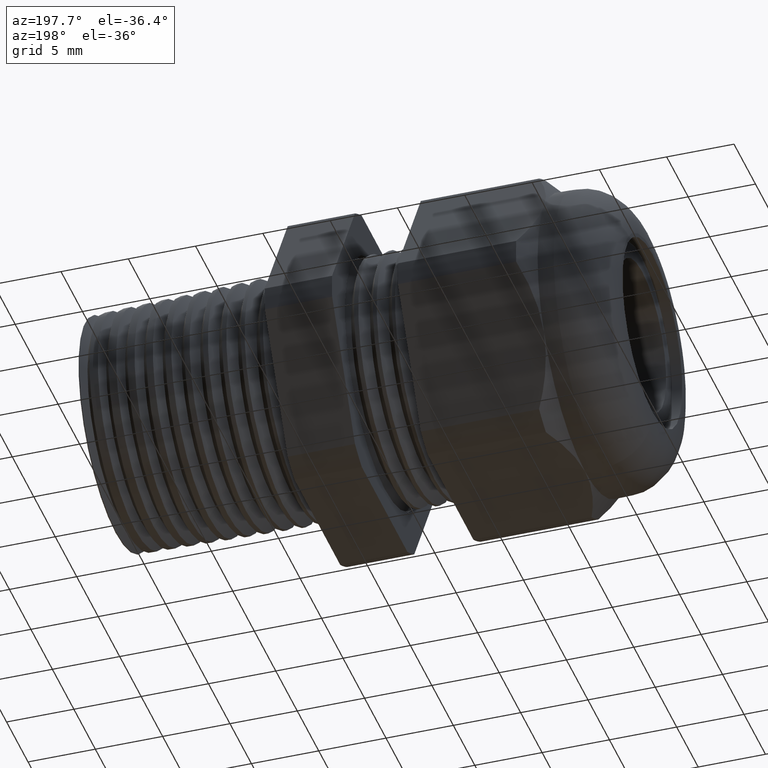
[diagram: clean part render]
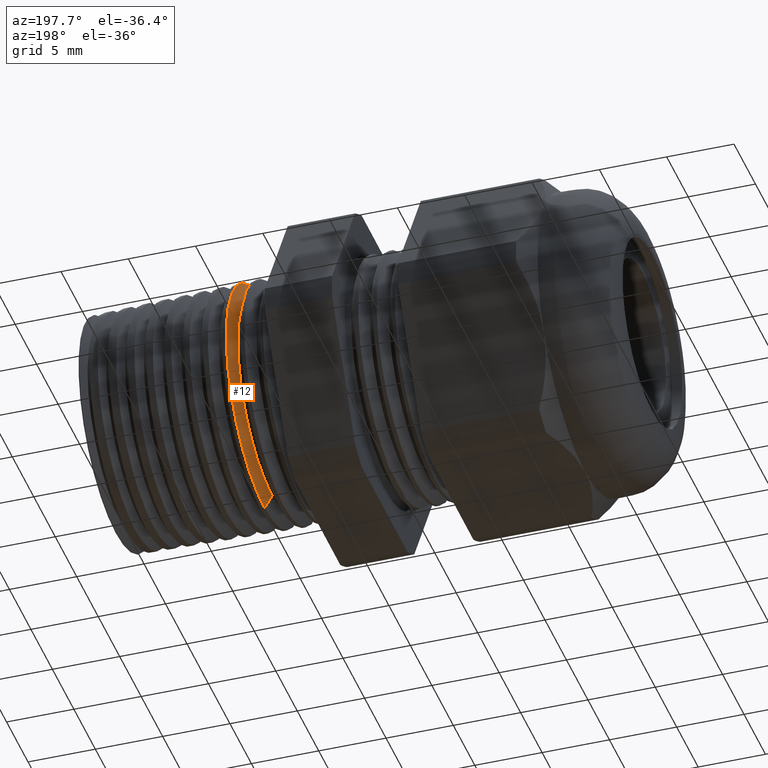
[diagram: same view with one face highlighted and labeled with its STEP entity id]
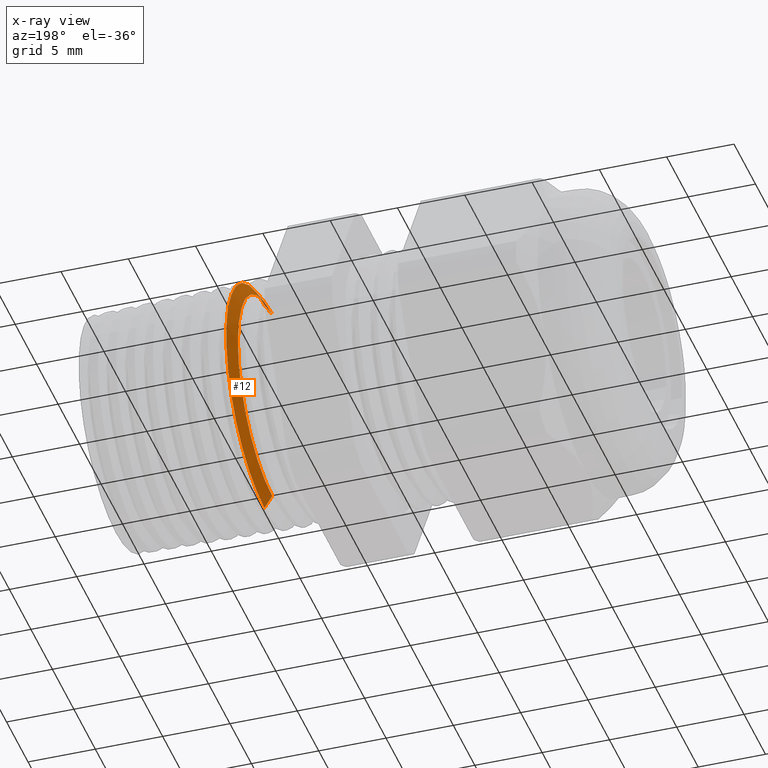
[diagram: x-ray of the same camera — body ghosted, the highlighted face saturated]
A machine part, auxiliary view. The second image highlights one B-rep face of the part: STEP entity #12.
The next image is the same camera in x-ray: the body ghosted, the highlighted face saturated — about 1% of this face is hidden behind the body in this view.
In plain terms, the highlighted conical surface has half-angle 58.5 deg.
Its self-contained STEP definition (entity closure, byte-faithful):
#6 = EDGE_LOOP ( 'NONE', ( #18, #3842, #3874, #20 ) ) ;
#12 = ADVANCED_FACE ( 'NONE', ( #1193 ), #1192, .T. ) ;
#15 = EDGE_CURVE ( 'NONE', #3880, #21, #1242, .T. ) ;
#18 = ORIENTED_EDGE ( 'NONE', *, *, #3854, .T. ) ;
#20 = ORIENTED_EDGE ( 'NONE', *, *, #15, .F. ) ;
#21 = VERTEX_POINT ( 'NONE', #1233 ) ;
#1187 = DIRECTION ( 'NONE',  ( 0.0000000000000000000, 0.0000000000000000000, -1.000000000000000000 ) ) ;
#1188 = DIRECTION ( 'NONE',  ( 1.000000000000000000, 0.0000000000000000000, 0.0000000000000000000 ) ) ;
#1189 = CARTESIAN_POINT ( 'NONE',  ( -0.1779609809054343300, 0.0000000000000000000, 0.0000000000000000000 ) ) ;
#1190 = AXIS2_PLACEMENT_3D ( 'NONE', #1189, #1188, #1187 ) ;
#1192 = CONICAL_SURFACE ( 'NONE', #1190, 0.3142111000480301000, 1.021017612416686300 ) ;
#1193 = FACE_OUTER_BOUND ( 'NONE', #6, .T. ) ;
#1233 = CARTESIAN_POINT ( 'NONE',  ( -0.1555650713481195600, 4.295545429934409000E-017, -0.3507579028439166700 ) ) ;
#1239 = DIRECTION ( 'NONE',  ( 0.5224985647159459100, 0.0000000000000000000, -0.8526401643540939500 ) ) ;
#1240 = VECTOR ( 'NONE', #1239, 39.37007874015748100 ) ;
#1241 = CARTESIAN_POINT ( 'NONE',  ( -0.1779609809054343300, 0.0000000000000000000, -0.3142111000480301000 ) ) ;
#1242 = LINE ( 'NONE', #1241, #1240 ) ;
#3370 = DIRECTION ( 'NONE',  ( 0.0000000000000000000, 0.0000000000000000000, -1.000000000000000000 ) ) ;
#3371 = DIRECTION ( 'NONE',  ( 1.000000000000000000, 0.0000000000000000000, 0.0000000000000000000 ) ) ;
#3372 = CARTESIAN_POINT ( 'NONE',  ( -0.1779609809054343300, 0.0000000000000000000, 0.0000000000000000000 ) ) ;
#3373 = AXIS2_PLACEMENT_3D ( 'NONE', #3372, #3371, #3370 ) ;
#3374 = CIRCLE ( 'NONE', #3373, 0.3142111000480301000 ) ;
#3382 = DIRECTION ( 'NONE',  ( 0.0000000000000000000, 0.0000000000000000000, -1.000000000000000000 ) ) ;
#3383 = DIRECTION ( 'NONE',  ( -1.000000000000000000, 0.0000000000000000000, 0.0000000000000000000 ) ) ;
#3384 = CARTESIAN_POINT ( 'NONE',  ( -0.1555650713481195600, 0.0000000000000000000, 0.0000000000000000000 ) ) ;
#3385 = AXIS2_PLACEMENT_3D ( 'NONE', #3384, #3383, #3382 ) ;
#3386 = CIRCLE ( 'NONE', #3385, 0.3507579028439167800 ) ;
#3387 = CARTESIAN_POINT ( 'NONE',  ( -0.1779609809054343300, 0.0000000000000000000, 0.3142111000480301000 ) ) ;
#3388 = DIRECTION ( 'NONE',  ( 0.5224985647159459100, 1.044183048100714500E-016, 0.8526401643540939500 ) ) ;
#3389 = VECTOR ( 'NONE', #3388, 39.37007874015748100 ) ;
#3390 = CARTESIAN_POINT ( 'NONE',  ( -0.1779609809054343300, 3.847976179303888500E-017, 0.3142111000480301000 ) ) ;
#3391 = LINE ( 'NONE', #3390, #3389 ) ;
#3392 = CARTESIAN_POINT ( 'NONE',  ( -0.1555650713481195600, 0.0000000000000000000, 0.3507579028439166700 ) ) ;
#3430 = CARTESIAN_POINT ( 'NONE',  ( -0.1779609809054343300, 4.078631227587564700E-017, -0.3142111000480301000 ) ) ;
#3842 = ORIENTED_EDGE ( 'NONE', *, *, #3872, .T. ) ;
#3854 = EDGE_CURVE ( 'NONE', #3880, #3875, #3374, .T. ) ;
#3871 = VERTEX_POINT ( 'NONE', #3392 ) ;
#3872 = EDGE_CURVE ( 'NONE', #3875, #3871, #3391, .T. ) ;
#3874 = ORIENTED_EDGE ( 'NONE', *, *, #3876, .T. ) ;
#3875 = VERTEX_POINT ( 'NONE', #3387 ) ;
#3876 = EDGE_CURVE ( 'NONE', #3871, #21, #3386, .T. ) ;
#3880 = VERTEX_POINT ( 'NONE', #3430 ) ;